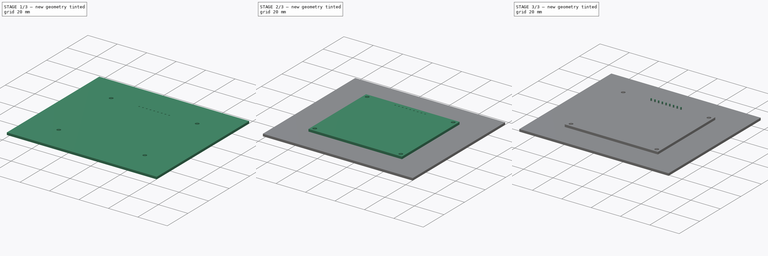
[diagram: build sequence overview — one tinted view per stage of 3, left to right]
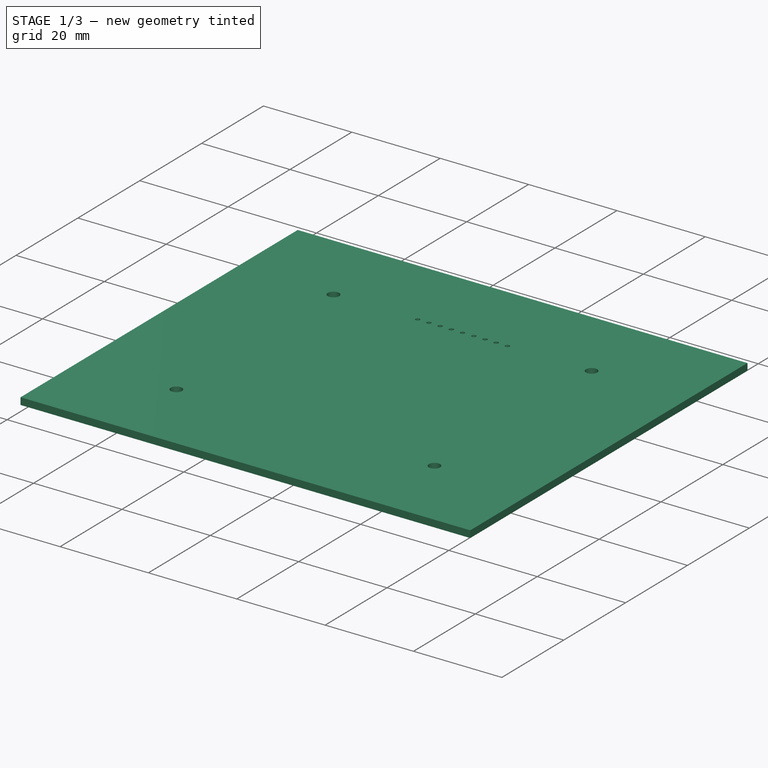
[diagram: stage 1 of 3 — iso view after this stage's code; geometry added in this stage tinted green]
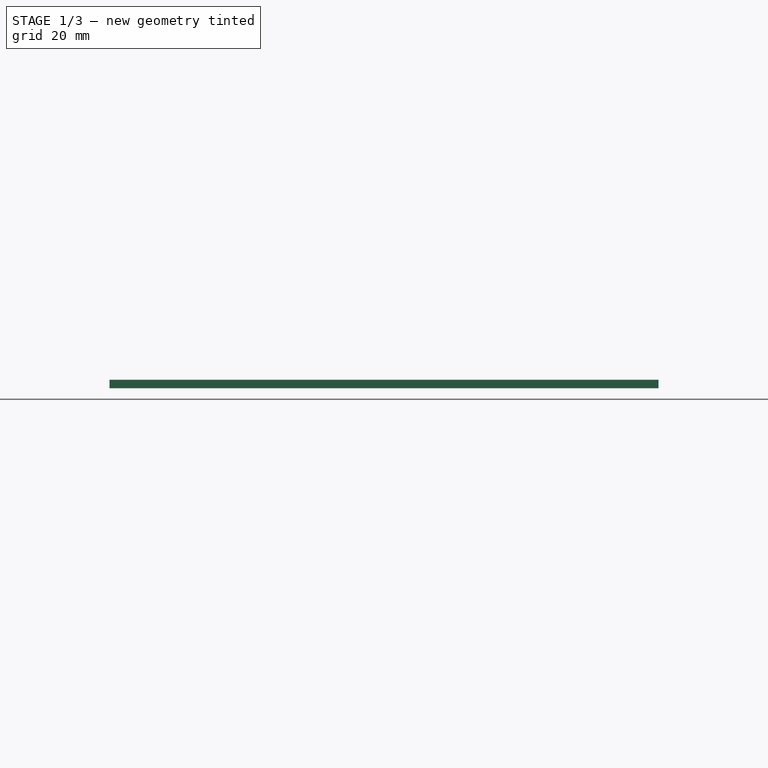
[diagram: stage 1 of 3 — front view after this stage's code; geometry added in this stage tinted green]
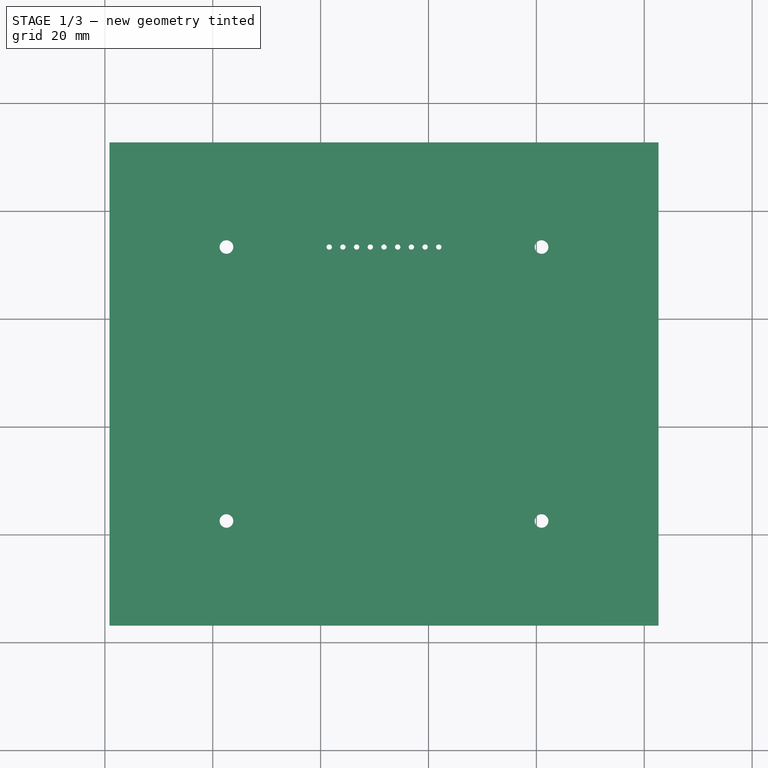
[diagram: stage 1 of 3 — top view after this stage's code; geometry added in this stage tinted green]
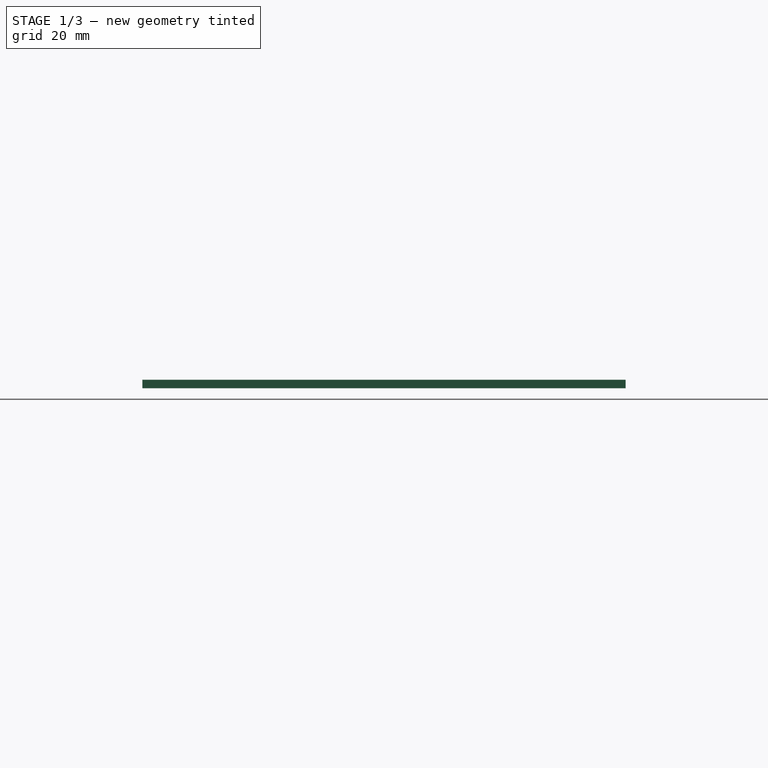
[diagram: stage 1 of 3 — right view after this stage's code; geometry added in this stage tinted green]
FCSTD DOCUMENT  (FreeCAD 0.19RUnknown)
Label: glcd
License: All rights reserved
LicenseURL: http://en.wikipedia.org/wiki/All_rights_reserved
objects: Part::Feature×6, Sketcher::SketchObject×4, PartDesign::Pad×3, Part::FeaturePython×3, App::DocumentObjectGroup×2, PartDesign::Pocket×1, PartDesign::Body×1
note: 22 computed .brp shape members not serialized (recipe doc carries the construction recipe); baked Part::Feature solids carry a one-line shape summary decoded from their .brp

FEATURE [PartDesign::Body] Body
  Group = -> [Sketch,Pad,Sketch001,Pocket,Sketch002,Pad001,Sketch003,Pad002]
  Origin = -> Origin
  Tip = -> Pad002
FEATURE [Part::FeaturePython] FSilk_lines  label="FrontSilk"  # a2plus imported part (geometry in sourceFile) (typed FeaturePython)
  fixedPosition = true
FEATURE [Part::FeaturePython] THPs  label="PTHs"  # a2plus imported part (geometry in sourceFile) (typed FeaturePython)
  fixedPosition = true
FEATURE [Part::Feature] Shape001003  label="TopPads"
  shape: bbox 61.47 x 53.85 x 0.01 mm, 59 faces, 13 solids (baked)
FEATURE [Part::Feature] Shape001004  label="BotPads"
  shape: bbox 61.47 x 53.85 x 0.01 mm, 59 faces, 13 solids (baked)
FEATURE [Part::FeaturePython] newPCB  label="Pcb"  # a2plus imported part (geometry in sourceFile) (typed FeaturePython)
  fixedPosition = true
FEATURE [App::DocumentObjectGroup] SHARP_DISPLAY_400x240_fp
  Group = -> [FSilk_lines,Shape001003,Shape001004,THPs,newPCB]
FEATURE [Part::Feature] FusionAxisZ1  label="Z"
  shape: bbox 0.8 x 0.8 x 14 mm, 8 faces (baked)
FEATURE [Part::Feature] FusionAxisY1  label="Y"
  Placement = pos=(0,0,0.05) rot=(1,0,0;-1.5708rad)
  shape: bbox 0.8 x 14 x 0.8 mm, 8 faces (baked)
FEATURE [Part::Feature] FusionAxisX1  label="X"
  Placement = pos=(0,-0.05,0) rot=(0,1,0;1.5708rad)
  shape: bbox 14 x 0.8 x 0.8 mm, 8 faces (baked)
FEATURE [App::DocumentObjectGroup] axis
  Group = -> [FusionAxisZ1,FusionAxisY1,FusionAxisX1]
FEATURE [Part::Feature] Shape  label="Fusion"
  shape: bbox 63.5 x 55.88 x 11.7 mm, 118 faces (baked)
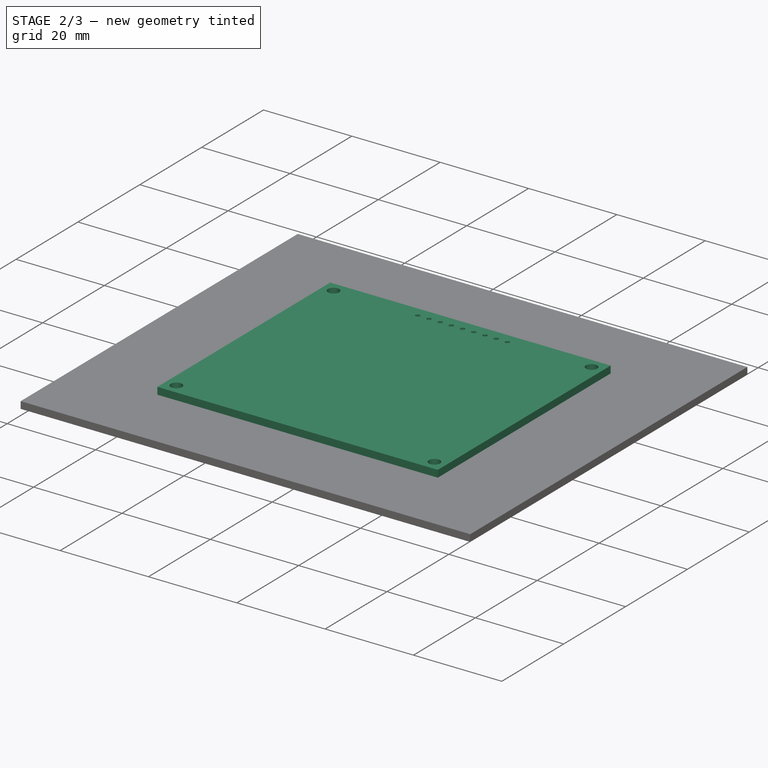
[diagram: stage 2 of 3 — iso view after this stage's code; geometry added in this stage tinted green]
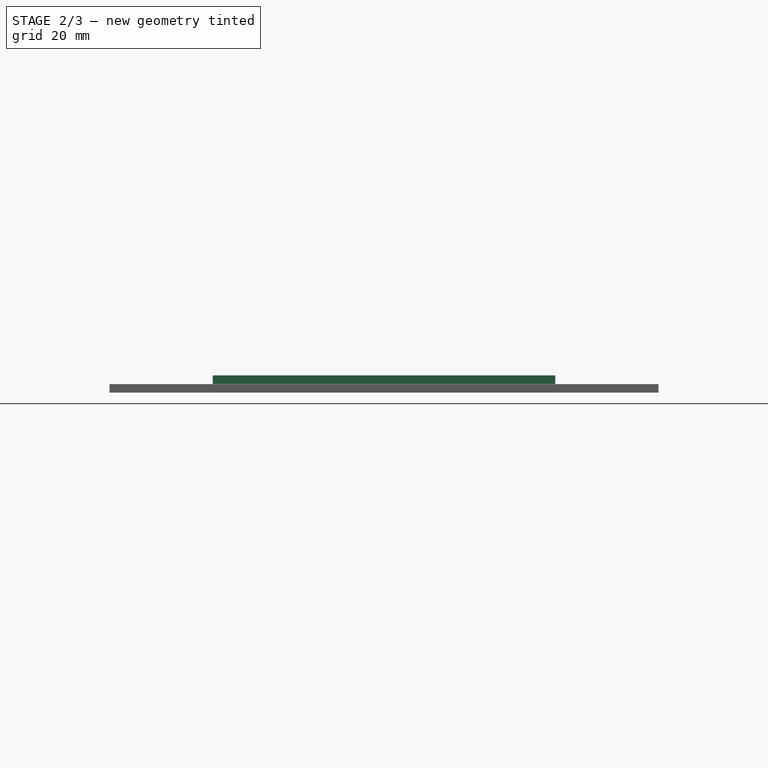
[diagram: stage 2 of 3 — front view after this stage's code; geometry added in this stage tinted green]
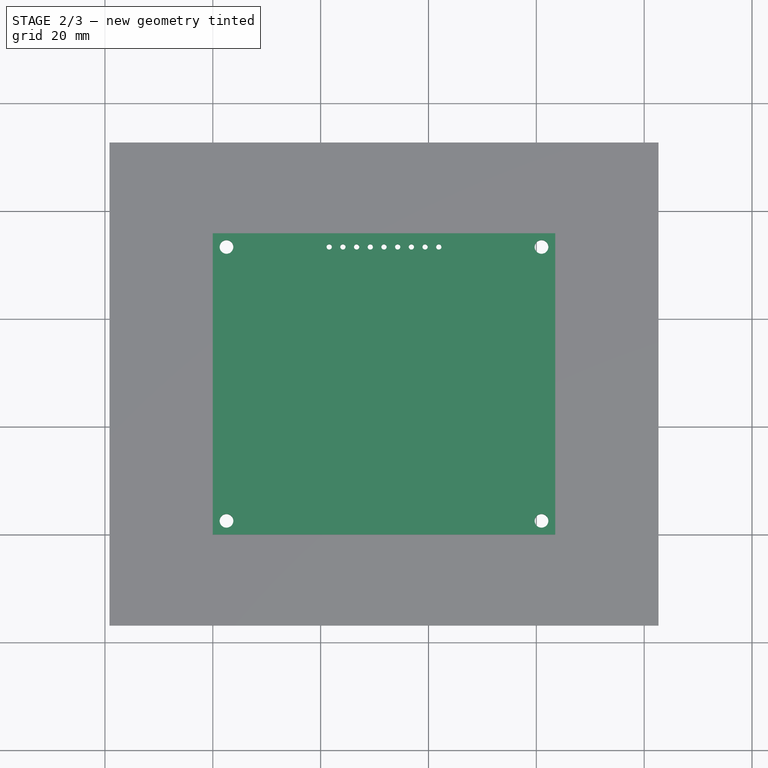
[diagram: stage 2 of 3 — top view after this stage's code; geometry added in this stage tinted green]
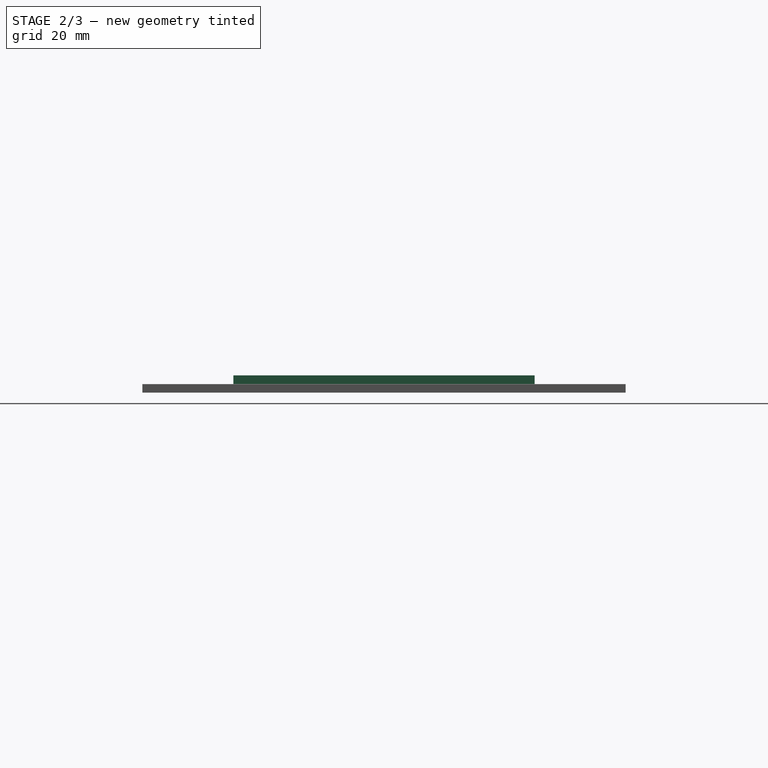
[diagram: stage 2 of 3 — right view after this stage's code; geometry added in this stage tinted green]
FEATURE [Sketcher::SketchObject] Sketch
  FullyConstrained = true
  MapMode = 5
  Support = -> [XY_Plane]
  sketch-geometry (4):
    g0: LineSegment StartX=0 StartY=0 StartZ=0 EndX=0 EndY=55.88 EndZ=0
    g1: LineSegment StartX=0 StartY=55.88 StartZ=0 EndX=63.5 EndY=55.88 EndZ=0
    g2: LineSegment StartX=63.5 StartY=55.88 StartZ=0 EndX=63.5 EndY=0 EndZ=0
    g3: LineSegment StartX=0 StartY=0 StartZ=0 EndX=63.5 EndY=0 EndZ=0
  constraints (11):
    c: Vertical(g0)
    c: Coincident(g0,g1)
    c: Horizontal(g1)
    c: Coincident(g1,g2)
    c: Vertical(g2)
    c: Coincident(g0,g-1)
    c: Coincident(g3,g0)
    c: Coincident(g3,g2)
    c: Horizontal(g3)
    c: DistanceX(g3,g3) = 63.5
    c: DistanceY(g0,g0) = 55.88
FEATURE [PartDesign::Pad] Pad
  Direction = (1,1,1)
  Length = 1.6
  Length2 = 100
  Profile = -> Sketch
  Type = 0
FEATURE [Sketcher::SketchObject] Sketch001
  FullyConstrained = true
  MapMode = 5
  Support = -> [XY_Plane]
  sketch-geometry (13):
    g0: Circle CenterX=26.67 CenterY=53.34 CenterZ=0 NormalX=0 NormalY=0 NormalZ=1 AngleXU=0 Radius=0.49
    g1: Circle CenterX=24.13 CenterY=53.34 CenterZ=0 NormalX=0 NormalY=0 NormalZ=1 AngleXU=0 Radius=0.49
    g2: Circle CenterX=21.59 CenterY=53.34 CenterZ=0 NormalX=0 NormalY=0 NormalZ=1 AngleXU=0 Radius=0.49
    g3: Circle CenterX=29.21 CenterY=53.34 CenterZ=0 NormalX=0 NormalY=0 NormalZ=1 AngleXU=0 Radius=0.49
    g4: Circle CenterX=31.75 CenterY=53.34 CenterZ=0 NormalX=0 NormalY=0 NormalZ=1 AngleXU=0 Radius=0.49
    g5: Circle CenterX=34.29 CenterY=53.34 CenterZ=0 NormalX=0 NormalY=0 NormalZ=1 AngleXU=0 Radius=0.49
    g6: Circle CenterX=36.83 CenterY=53.34 CenterZ=0 NormalX=0 NormalY=0 NormalZ=1 AngleXU=0 Radius=0.49
    g7: Circle CenterX=39.37 CenterY=53.34 CenterZ=0 NormalX=0 NormalY=0 NormalZ=1 AngleXU=0 Radius=0.49
    g8: Circle CenterX=41.91 CenterY=53.34 CenterZ=0 NormalX=0 NormalY=0 NormalZ=1 AngleXU=0 Radius=0.49
    g9: Circle CenterX=2.54 CenterY=2.54 CenterZ=0 NormalX=0 NormalY=0 NormalZ=1 AngleXU=0 Radius=1.27
    g10: Circle CenterX=60.96 CenterY=2.54 CenterZ=0 NormalX=0 NormalY=0 NormalZ=1 AngleXU=0 Radius=1.27
    g11: Circle CenterX=60.96 CenterY=53.34 CenterZ=0 NormalX=0 NormalY=0 NormalZ=1 AngleXU=0 Radius=1.27
    g12: Circle CenterX=2.54 CenterY=53.34 CenterZ=0 NormalX=0 NormalY=0 NormalZ=1 AngleXU=0 Radius=1.27
  constraints (39):
    c: Diameter(g0) = 0.98
    c: DistanceY(g-1,g0) = 53.34
    c: Equal(g1,g2)
    c: Equal(g1,g3)
    c: Equal(g1,g4)
    c: Diameter(g1) = 0.98
    c: DistanceY(g-1,g2) = 53.34
    c: DistanceY(g-1,g1) = 53.34
    c: DistanceY(g-1,g3) = 53.34
    c: DistanceY(g-1,g4) = 53.34
    c: DistanceX(g1,g0) = 2.54
    c: DistanceX(g2,g1) = 2.54
    c: DistanceX(g0,g3) = 2.54
    c: DistanceX(g3,g4) = 2.54
    c: DistanceX(g-1,g2) = 21.59
    c: Equal(g5,g6)
    c: Equal(g6,g7)
    c: Equal(g7,g4)
    c: DistanceX(g4,g5) = 2.54
    c: DistanceX(g5,g6) = 2.54
    c: DistanceX(g6,g7) = 2.54
    c: DistanceY(g-1,g7) = 53.34
    c: DistanceY(g-1,g6) = 53.34
    c: DistanceY(g-1,g5) = 53.34
    c: Diameter(g8) = 0.98
    c: DistanceX(g7,g8) = 2.54
    c: DistanceY(g-1,g8) = 53.34
    c: Equal(g9,g12)
    c: Equal(g12,g11)
    c: Equal(g11,g10)
    c: Diameter(g9) = 2.54
    c: DistanceX(g-1,g9) = 2.54
    c: DistanceY(g-1,g9) = 2.54
    c: DistanceY(g-1,g10) = 2.54
    c: DistanceX(g-1,g10) = 60.96
    c: DistanceX(g-1,g11) = 60.96
    c: DistanceX(g-1,g12) = 2.54
    c: DistanceY(g-1,g12) = 53.34
    c: DistanceY(g-1,g11) = 53.34
FEATURE [PartDesign::Pocket] Pocket
  BaseFeature = -> Pad
  Length = 1.6
  Length2 = 100
  Profile = -> Sketch001
  Reversed = true
  Type = 0
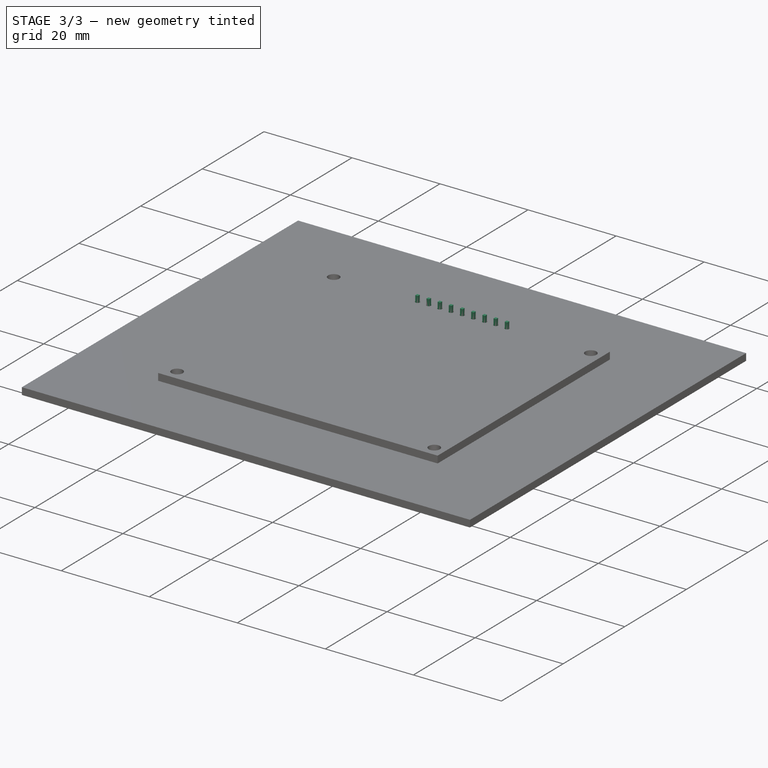
[diagram: stage 3 of 3 — iso view after this stage's code; geometry added in this stage tinted green]
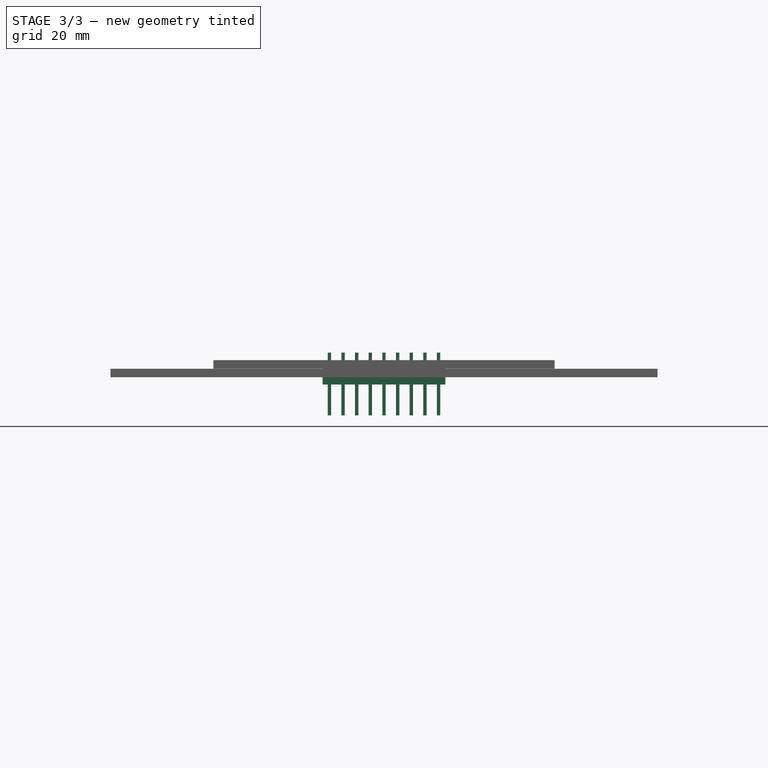
[diagram: stage 3 of 3 — front view after this stage's code; geometry added in this stage tinted green]
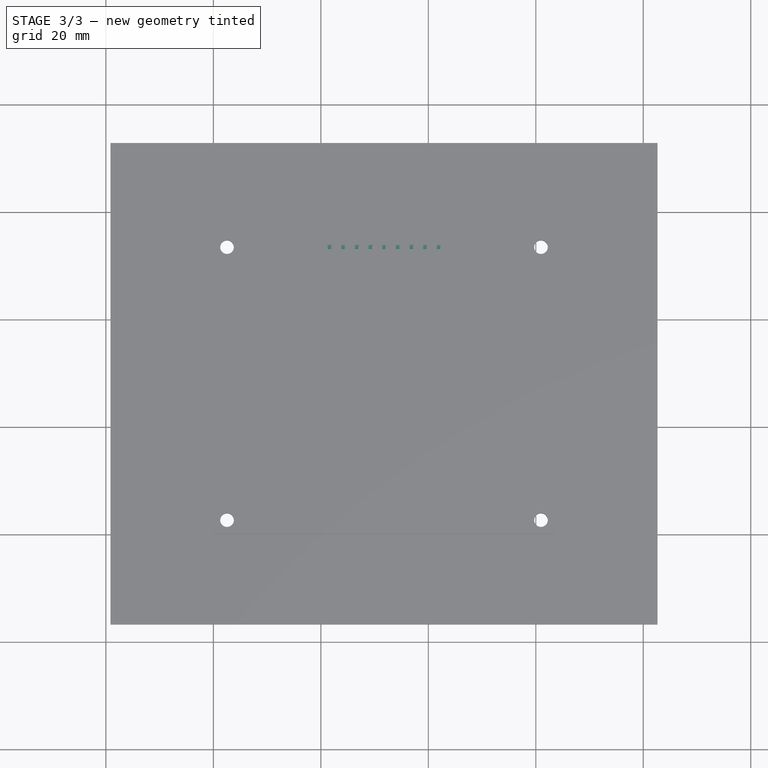
[diagram: stage 3 of 3 — top view after this stage's code; geometry added in this stage tinted green]
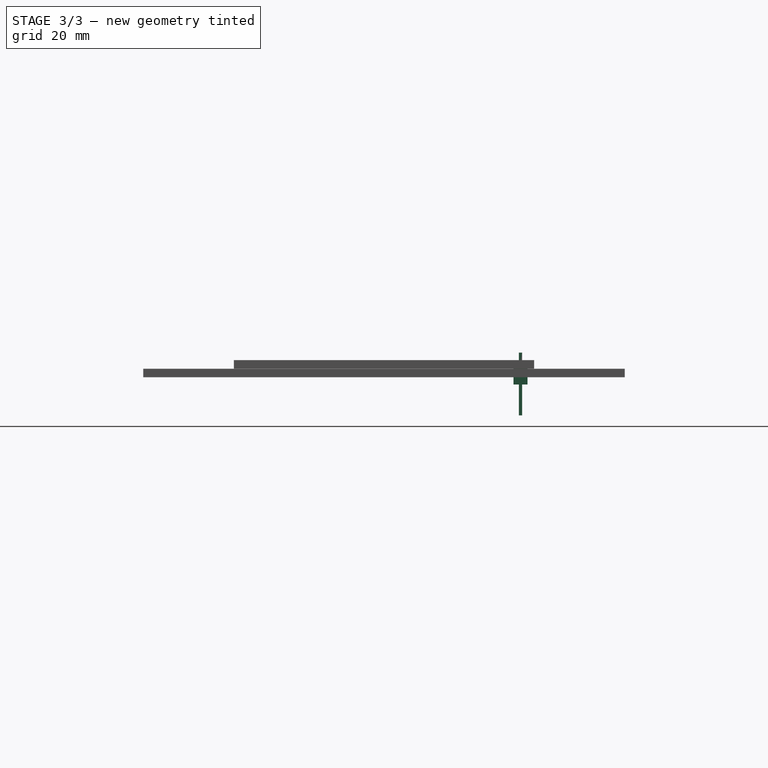
[diagram: stage 3 of 3 — right view after this stage's code; geometry added in this stage tinted green]
FEATURE [Sketcher::SketchObject] Sketch002
  FullyConstrained = true
  MapMode = 5
  Support = -> [XY_Plane]
  sketch-geometry (4):
    g0: LineSegment StartX=20.32 StartY=54.65 StartZ=0 EndX=43.18 EndY=54.65 EndZ=0
    g1: LineSegment StartX=43.18 StartY=54.65 StartZ=0 EndX=43.18 EndY=52.03 EndZ=0
    g2: LineSegment StartX=43.18 StartY=52.03 StartZ=0 EndX=20.32 EndY=52.03 EndZ=0
    g3: LineSegment StartX=20.32 StartY=52.03 StartZ=0 EndX=20.32 EndY=54.65 EndZ=0
  constraints (12):
    c: Coincident(g0,g1)
    c: Coincident(g1,g2)
    c: Coincident(g2,g3)
    c: Coincident(g3,g0)
    c: Horizontal(g0)
    c: Horizontal(g2)
    c: Vertical(g1)
    c: Vertical(g3)
    c: DistanceY(g3,g3) = 2.62
    c: DistanceX(g2,g2) = 22.86
    c: DistanceX(g-1,g2) = 20.32
    c: DistanceY(g-1,g2) = 52.03
FEATURE [PartDesign::Pad] Pad001
  BaseFeature = -> Pocket
  Direction = (1,1,1)
  Length = 2.94
  Length2 = 100
  Profile = -> Sketch002
  Reversed = true
  Type = 0
FEATURE [Sketcher::SketchObject] Sketch003
  AttachmentOffset = pos=(0,0,-8.7) rot=(0,0,1;0rad)
  FullyConstrained = true
  MapMode = 5
  Placement = pos=(0,0,-8.7) rot=(0,0,1;0rad)
  Support = -> [XY_Plane]
  sketch-geometry (36):
    g0: LineSegment StartX=21.28 StartY=53.65 StartZ=0 EndX=21.9 EndY=53.65 EndZ=0
    g1: LineSegment StartX=21.9 StartY=53.65 StartZ=0 EndX=21.9 EndY=53.03 EndZ=0
    g2: LineSegment StartX=21.9 StartY=53.03 StartZ=0 EndX=21.28 EndY=53.03 EndZ=0
    g3: LineSegment StartX=21.28 StartY=53.03 StartZ=0 EndX=21.28 EndY=53.65 EndZ=0
    g4: LineSegment StartX=23.82 StartY=53.03 StartZ=0 EndX=24.44 EndY=53.03 EndZ=0
    g5: LineSegment StartX=24.44 StartY=53.03 StartZ=0 EndX=24.44 EndY=53.65 EndZ=0
    g6: LineSegment StartX=24.44 StartY=53.65 StartZ=0 EndX=23.82 EndY=53.65 EndZ=0
    g7: LineSegment StartX=23.82 StartY=53.65 StartZ=0 EndX=23.82 EndY=53.03 EndZ=0
    g8: LineSegment StartX=26.98 StartY=53.03 StartZ=0 EndX=26.36 EndY=53.03 EndZ=0
    g9: LineSegment StartX=26.36 StartY=53.03 StartZ=0 EndX=26.36 EndY=53.65 EndZ=0
    g10: LineSegment StartX=26.36 StartY=53.65 StartZ=0 EndX=26.98 EndY=53.65 EndZ=0
    g11: LineSegment StartX=26.98 StartY=53.65 StartZ=0 EndX=26.98 EndY=53.03 EndZ=0
    g12: LineSegment StartX=29.52 StartY=53.03 StartZ=0 EndX=28.9 EndY=53.03 EndZ=0
    g13: LineSegment StartX=28.9 StartY=53.03 StartZ=0 EndX=28.9 EndY=53.65 EndZ=0
    g14: LineSegment StartX=28.9 StartY=53.65 StartZ=0 EndX=29.52 EndY=53.65 EndZ=0
    g15: LineSegment StartX=29.52 StartY=53.65 StartZ=0 EndX=29.52 EndY=53.03 EndZ=0
    g16: LineSegment StartX=34.6 StartY=53.03 StartZ=0 EndX=33.98 EndY=53.03 EndZ=0
    g17: LineSegment StartX=33.98 StartY=53.03 StartZ=0 EndX=33.98 EndY=53.65 EndZ=0
    g18: LineSegment StartX=33.98 StartY=53.65 StartZ=0 EndX=34.6 EndY=53.65 EndZ=0
    g19: LineSegment StartX=34.6 StartY=53.65 StartZ=0 EndX=34.6 EndY=53.03 EndZ=0
    g20: LineSegment StartX=32.06 StartY=53.03 StartZ=0 EndX=31.44 EndY=53.03 EndZ=0
    g21: LineSegment StartX=31.44 StartY=53.03 StartZ=0 EndX=31.44 EndY=53.65 EndZ=0
    g22: LineSegment StartX=31.44 StartY=53.65 StartZ=0 EndX=32.06 EndY=53.65 EndZ=0
    g23: LineSegment StartX=32.06 StartY=53.65 StartZ=0 EndX=32.06 EndY=53.03 EndZ=0
    g24: LineSegment StartX=37.14 StartY=53.03 StartZ=0 EndX=36.52 EndY=53.03 EndZ=0
    g25: LineSegment StartX=36.52 StartY=53.03 StartZ=0 EndX=36.52 EndY=53.65 EndZ=0
    g26: LineSegment StartX=36.52 StartY=53.65 StartZ=0 EndX=37.14 EndY=53.65 EndZ=0
    g27: LineSegment StartX=37.14 StartY=53.65 StartZ=0 EndX=37.14 EndY=53.03 EndZ=0
    g28: LineSegment StartX=39.68 StartY=53.03 StartZ=0 EndX=39.06 EndY=53.03 EndZ=0
    g29: LineSegment StartX=39.06 StartY=53.03 StartZ=0 EndX=39.06 EndY=53.65 EndZ=0
    g30: LineSegment StartX=39.06 StartY=53.65 StartZ=0 EndX=39.68 EndY=53.65 EndZ=0
    g31: LineSegment StartX=39.68 StartY=53.65 StartZ=0 EndX=39.68 EndY=53.03 EndZ=0
    g32: LineSegment StartX=41.6 StartY=53.65 StartZ=0 EndX=42.22 EndY=53.65 EndZ=0
    g33: LineSegment StartX=42.22 StartY=53.65 StartZ=0 EndX=42.22 EndY=53.03 EndZ=0
    g34: LineSegment StartX=42.22 StartY=53.03 StartZ=0 EndX=41.6 EndY=53.03 EndZ=0
    g35: LineSegment StartX=41.6 StartY=53.03 StartZ=0 EndX=41.6 EndY=53.65 EndZ=0
  constraints (108):
    c: Coincident(g0,g1)
    c: Coincident(g1,g2)
    c: Coincident(g2,g3)
    c: Coincident(g3,g0)
    c: Horizontal(g0)
    c: Horizontal(g2)
    c: Vertical(g1)
    c: Vertical(g3)
    c: Coincident(g4,g5)
    c: Coincident(g5,g6)
    c: Coincident(g6,g7)
    c: Coincident(g7,g4)
    c: Horizontal(g4)
    c: Horizontal(g6)
    c: Vertical(g5)
    c: Vertical(g7)
    c: Coincident(g8,g9)
    c: Coincident(g9,g10)
    c: Coincident(g10,g11)
    c: Coincident(g11,g8)
    c: Horizontal(g8)
    c: Horizontal(g10)
    c: Vertical(g9)
    c: Vertical(g11)
    c: Coincident(g12,g13)
    c: Coincident(g13,g14)
    c: Coincident(g14,g15)
    c: Coincident(g15,g12)
    c: Horizontal(g12)
    c: Horizontal(g14)
    c: Vertical(g13)
    c: Vertical(g15)
    c: Coincident(g16,g17)
    c: Coincident(g17,g18)
    c: Coincident(g18,g19)
    c: Coincident(g19,g16)
    c: Horizontal(g16)
    c: Horizontal(g18)
    c: Vertical(g17)
    c: Vertical(g19)
    c: Coincident(g20,g21)
    c: Coincident(g21,g22)
    c: Coincident(g22,g23)
    c: Coincident(g23,g20)
    c: Horizontal(g20)
    c: Horizontal(g22)
    c: Vertical(g21)
    c: Vertical(g23)
    c: Coincident(g24,g25)
    c: Coincident(g25,g26)
    c: Coincident(g26,g27)
    c: Coincident(g27,g24)
    c: Horizontal(g24)
    c: Horizontal(g26)
    c: Vertical(g25)
    c: Vertical(g27)
    c: Coincident(g28,g29)
    c: Coincident(g29,g30)
    c: Coincident(g30,g31)
    c: Coincident(g31,g28)
    c: Horizontal(g28)
    c: Horizontal(g30)
    c: Vertical(g29)
    c: Vertical(g31)
    c: Equal(g2,g6)
    c: Equal(g6,g10)
    c: Equal(g10,g14)
    c: Equal(g14,g18)
    c: Equal(g18,g22)
    c: Equal(g22,g26)
    c: Equal(g26,g30)
    c: DistanceX(g2,g2) = 0.62
    c: DistanceY(g3,g3) = 0.62
    c: Equal(g3,g7)
    c: Equal(g7,g11)
    c: Equal(g11,g15)
    c: Equal(g15,g19)
    c: Equal(g19,g23)
    c: Equal(g23,g27)
    c: Equal(g27,g31)
    c: DistanceX(g-1,g2) = 21.28
    c: DistanceX(g2,g6) = 2.54
    c: DistanceX(g10,g14) = 2.54
    c: DistanceX(g26,g30) = 2.54
    c: DistanceX(g14,g22) = 2.54
    c: DistanceX(g22,g18) = 2.54
    c: DistanceX(g18,g26) = 2.54
    c: DistanceY(g-1,g2) = 53.03
    c: DistanceY(g-1,g6) = 53.65
    c: DistanceY(g-1,g10) = 53.65
    c: DistanceY(g-1,g14) = 53.65
    c: DistanceY(g-1,g22) = 53.65
    c: DistanceY(g-1,g18) = 53.65
    c: DistanceY(g-1,g26) = 53.65
    c: DistanceY(g-1,g30) = 53.65
    c: DistanceX(g6,g9) = 2.54
    c: Coincident(g32,g33)
    c: Coincident(g33,g34)
    c: Coincident(g34,g35)
    c: Coincident(g35,g32)
    c: Horizontal(g32)
    c: Horizontal(g34)
    c: Vertical(g33)
    c: Vertical(g35)
    c: Equal(g28,g34)
    c: Equal(g29,g35)
    c: DistanceX(g29,g32) = 2.54
    c: DistanceY(g-1,g32) = 53.65
FEATURE [PartDesign::Pad] Pad002
  BaseFeature = -> Pad001
  Direction = (1,1,1)
  Length = 11.7
  Length2 = 100
  Profile = -> Sketch003
  Type = 0
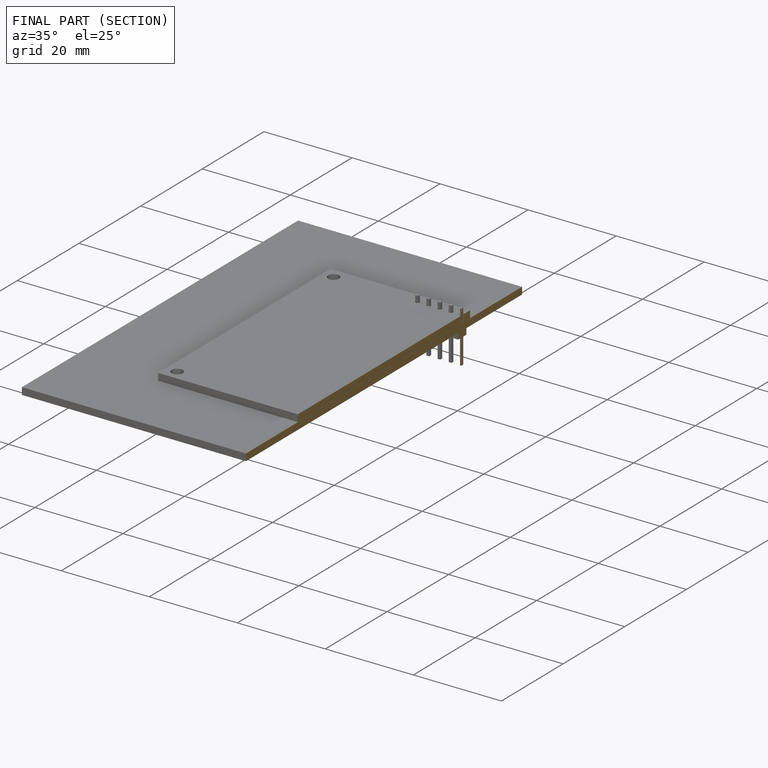
[diagram: finished part — half-section view (interior)]
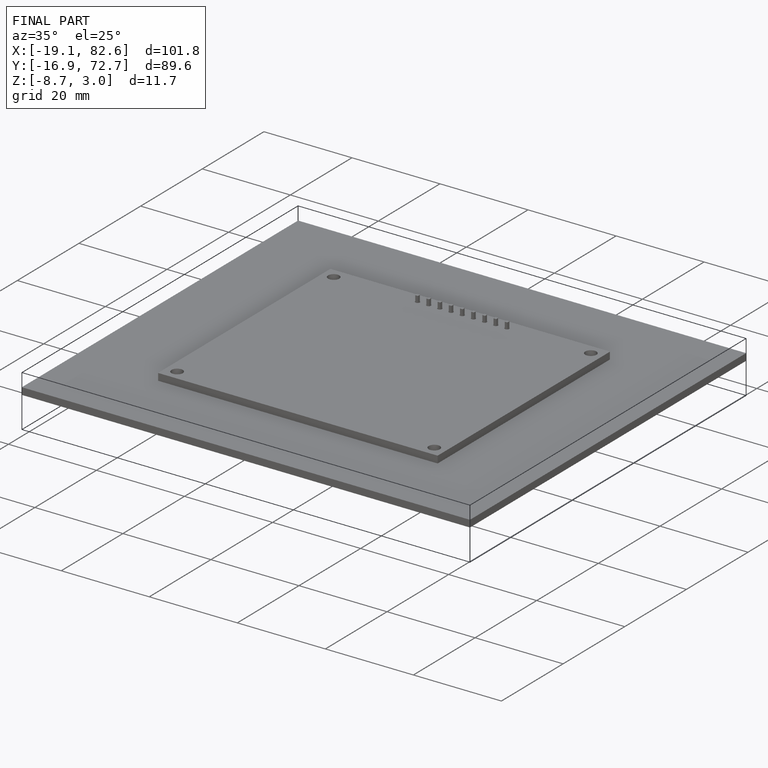
[diagram: finished part — iso view with bounding-box wireframe]
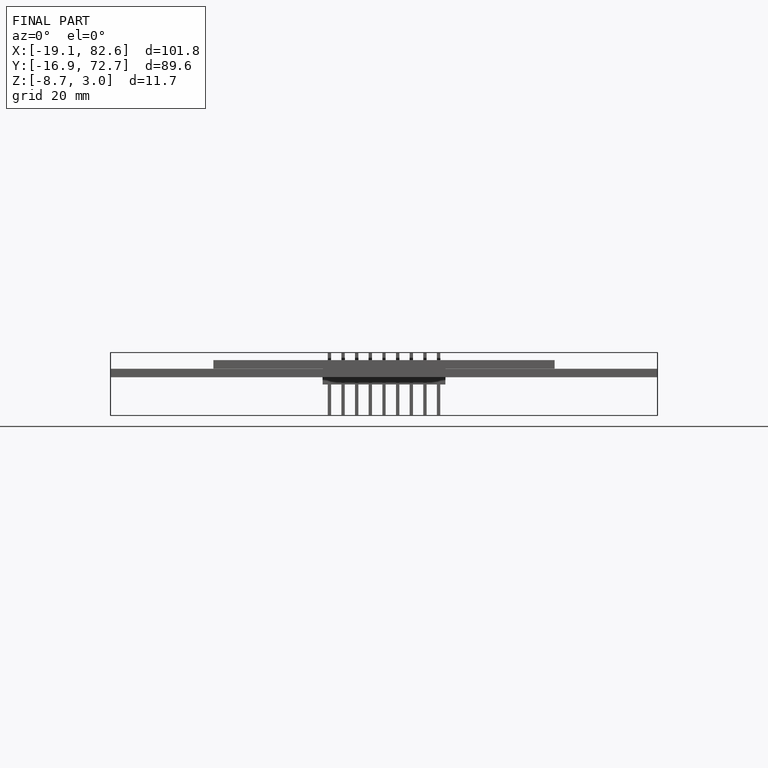
[diagram: finished part — front view with bounding-box wireframe]
